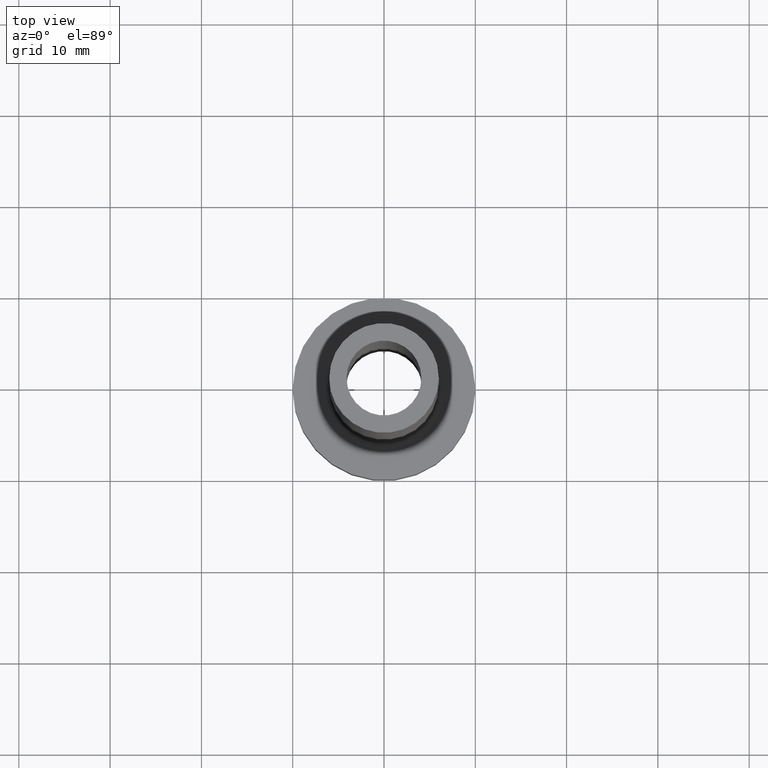
[diagram: clean part render]
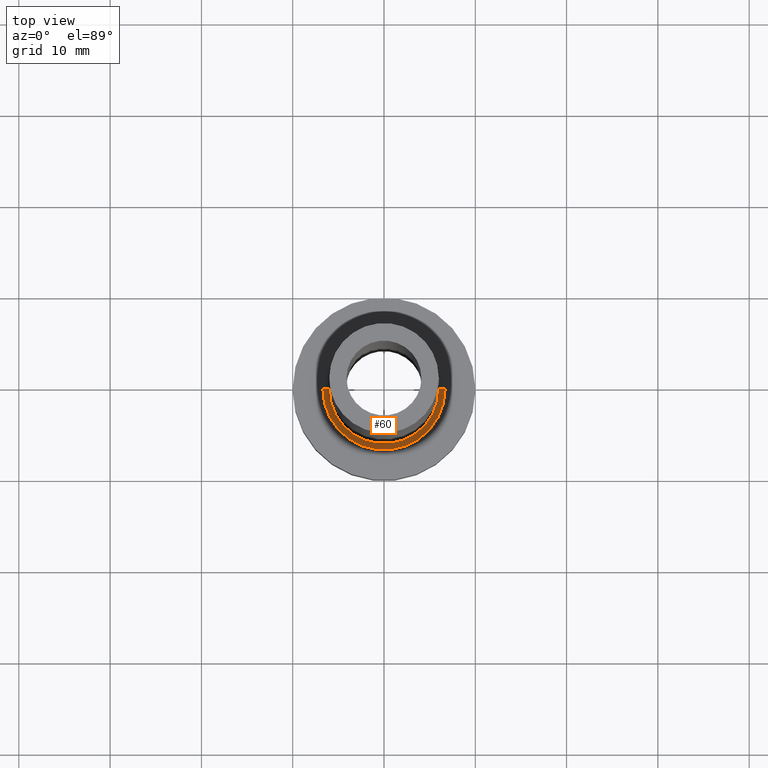
[diagram: same view with one face highlighted and labeled with its STEP entity id]
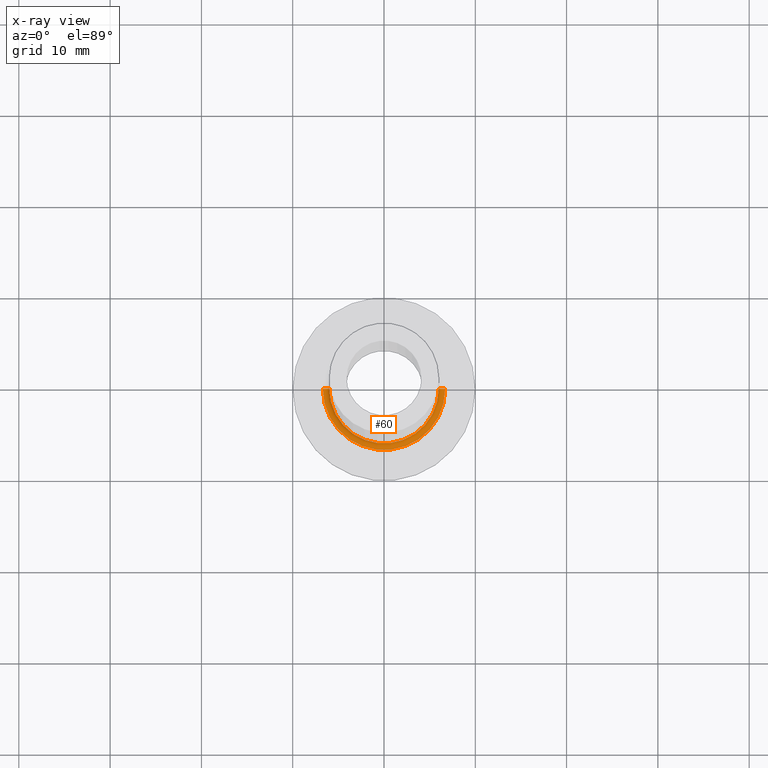
[diagram: x-ray of the same camera — body ghosted, the highlighted face saturated]
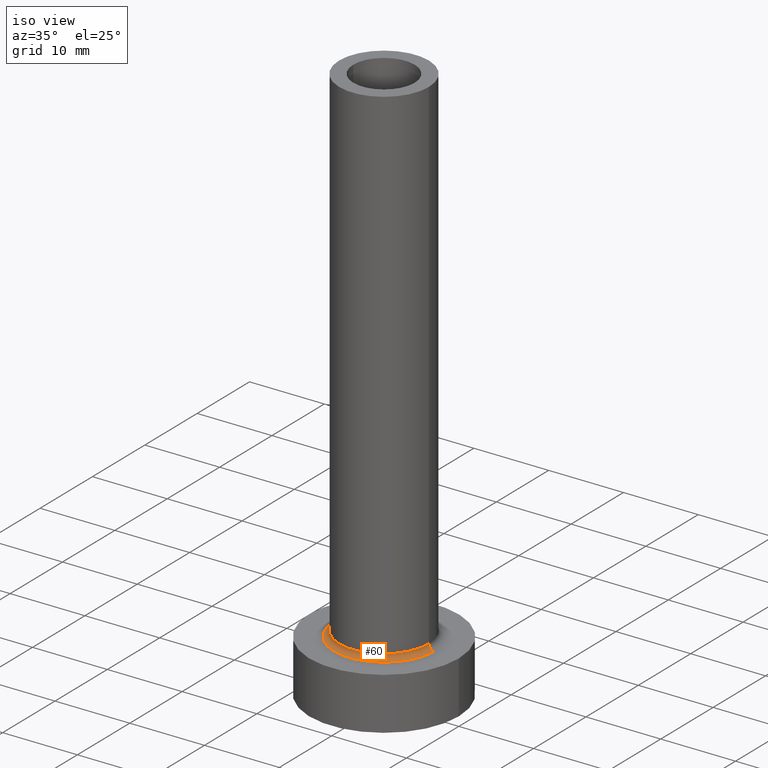
[diagram: same view with one face highlighted and labeled with its STEP entity id]
A machine part, top view. The second image highlights one B-rep face of the part: STEP entity #60.
The next image is the same camera in x-ray: the body ghosted, the highlighted face saturated — about 0% of this face is hidden behind the body in this view.
A second angle (iso view) of the same face is appended — the face is thin or edge-on in the first view.
In plain terms, the highlighted toroidal blend (fillet) surface has major radius 6.7 mm and minor (blend) radius 0.7 mm.
Its self-contained STEP definition (entity closure, byte-faithful):
#17 = VERTEX_POINT ( 'NONE', #142 ) ;
#18 = DIRECTION ( 'NONE',  ( 0.000000000000000000, 0.000000000000000000, 1.000000000000000000 ) ) ;
#44 = CARTESIAN_POINT ( 'NONE',  ( 6.700000000000001066, 0.000000000000000000, 6.999999999999999112 ) ) ;
#50 = ORIENTED_EDGE ( 'NONE', *, *, #140, .F. ) ;
#57 = CIRCLE ( 'NONE', #159, 0.7000000000000000666 ) ;
#60 = ADVANCED_FACE ( 'NONE', ( #385 ), #71, .F. ) ;
#65 = CARTESIAN_POINT ( 'NONE',  ( 0.000000000000000000, 0.000000000000000000, 7.000000000000000000 ) ) ;
#66 = VERTEX_POINT ( 'NONE', #44 ) ;
#71 = TOROIDAL_SURFACE ( 'NONE', #335, 6.700000000000001066, 0.6999999999999999556 ) ;
#72 = ORIENTED_EDGE ( 'NONE', *, *, #392, .F. ) ;
#75 = EDGE_LOOP ( 'NONE', ( #72, #288, #459, #50 ) ) ;
#87 = DIRECTION ( 'NONE',  ( 0.000000000000000000, 0.000000000000000000, 1.000000000000000000 ) ) ;
#129 = VERTEX_POINT ( 'NONE', #200 ) ;
#138 = AXIS2_PLACEMENT_3D ( 'NONE', #65, #212, #144 ) ;
#140 = EDGE_CURVE ( 'NONE', #129, #66, #57, .T. ) ;
#142 = CARTESIAN_POINT ( 'NONE',  ( -6.000000000000000888, 0.000000000000000000, 7.699999999999998401 ) ) ;
#144 = DIRECTION ( 'NONE',  ( 1.000000000000000000, 0.000000000000000000, 0.000000000000000000 ) ) ;
#156 = DIRECTION ( 'NONE',  ( 0.000000000000000000, -1.000000000000000000, 0.000000000000000000 ) ) ;
#159 = AXIS2_PLACEMENT_3D ( 'NONE', #432, #156, #301 ) ;
#160 = CARTESIAN_POINT ( 'NONE',  ( -6.700000000000001066, 8.205133554287267548E-16, 6.999999999999999112 ) ) ;
#169 = AXIS2_PLACEMENT_3D ( 'NONE', #219, #384, #179 ) ;
#179 = DIRECTION ( 'NONE',  ( -1.000000000000000000, 1.224646799147353454E-16, 0.000000000000000000 ) ) ;
#193 = DIRECTION ( 'NONE',  ( 1.000000000000000000, 0.000000000000000000, 0.000000000000000000 ) ) ;
#200 = CARTESIAN_POINT ( 'NONE',  ( 6.000000000000000888, 7.347880794884120722E-16, 7.699999999999998401 ) ) ;
#204 = CIRCLE ( 'NONE', #169, 0.7000000000000000666 ) ;
#212 = DIRECTION ( 'NONE',  ( -0.000000000000000000, -0.000000000000000000, -1.000000000000000000 ) ) ;
#219 = CARTESIAN_POINT ( 'NONE',  ( -6.700000000000001066, 8.205133554287267548E-16, 7.699999999999998401 ) ) ;
#283 = CARTESIAN_POINT ( 'NONE',  ( 0.000000000000000000, 0.000000000000000000, 7.699999999999998401 ) ) ;
#288 = ORIENTED_EDGE ( 'NONE', *, *, #318, .T. ) ;
#301 = DIRECTION ( 'NONE',  ( 0.000000000000000000, 0.000000000000000000, -1.000000000000000000 ) ) ;
#318 = EDGE_CURVE ( 'NONE', #17, #404, #204, .T. ) ;
#335 = AXIS2_PLACEMENT_3D ( 'NONE', #355, #87, #193 ) ;
#346 = CIRCLE ( 'NONE', #138, 6.700000000000001066 ) ;
#355 = CARTESIAN_POINT ( 'NONE',  ( 0.000000000000000000, 0.000000000000000000, 7.699999999999998401 ) ) ;
#377 = EDGE_CURVE ( 'NONE', #66, #404, #346, .T. ) ;
#384 = DIRECTION ( 'NONE',  ( 1.224646799147353207E-16, 1.000000000000000000, -0.000000000000000000 ) ) ;
#385 = FACE_OUTER_BOUND ( 'NONE', #75, .T. ) ;
#392 = EDGE_CURVE ( 'NONE', #17, #129, #403, .T. ) ;
#403 = CIRCLE ( 'NONE', #425, 6.000000000000000888 ) ;
#404 = VERTEX_POINT ( 'NONE', #160 ) ;
#425 = AXIS2_PLACEMENT_3D ( 'NONE', #283, #18, #431 ) ;
#431 = DIRECTION ( 'NONE',  ( 1.000000000000000000, 0.000000000000000000, 0.000000000000000000 ) ) ;
#432 = CARTESIAN_POINT ( 'NONE',  ( 6.700000000000001066, 0.000000000000000000, 7.699999999999998401 ) ) ;
#459 = ORIENTED_EDGE ( 'NONE', *, *, #377, .F. ) ;